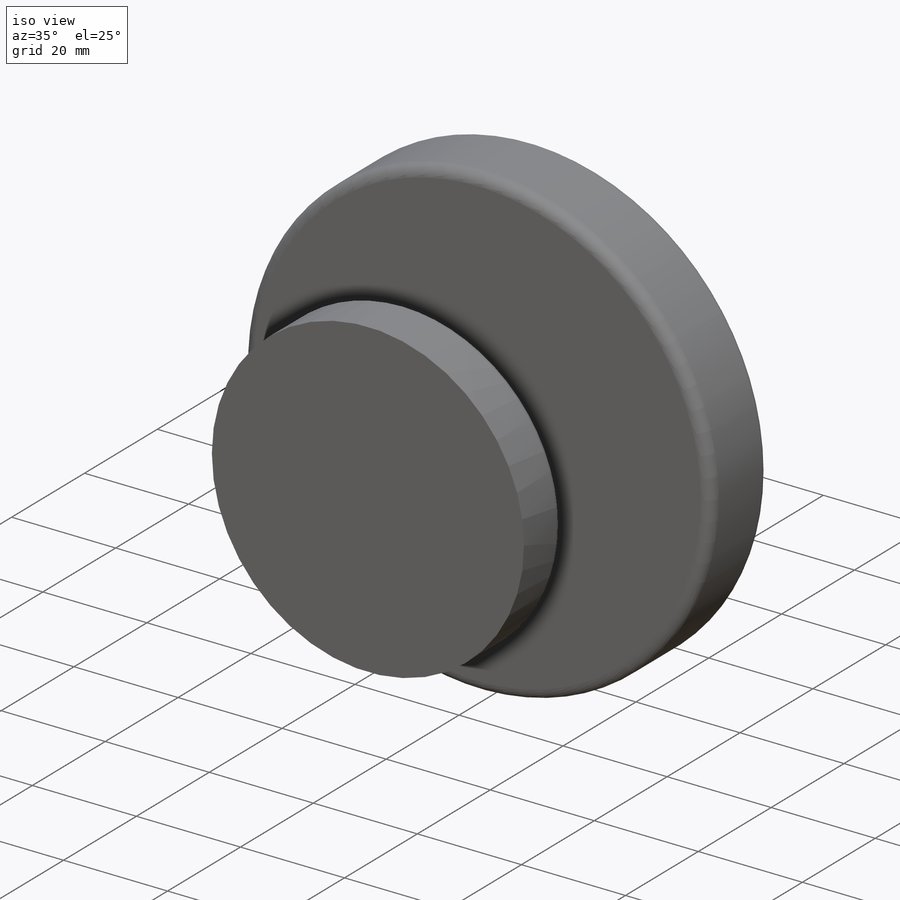
[diagram: iso view]
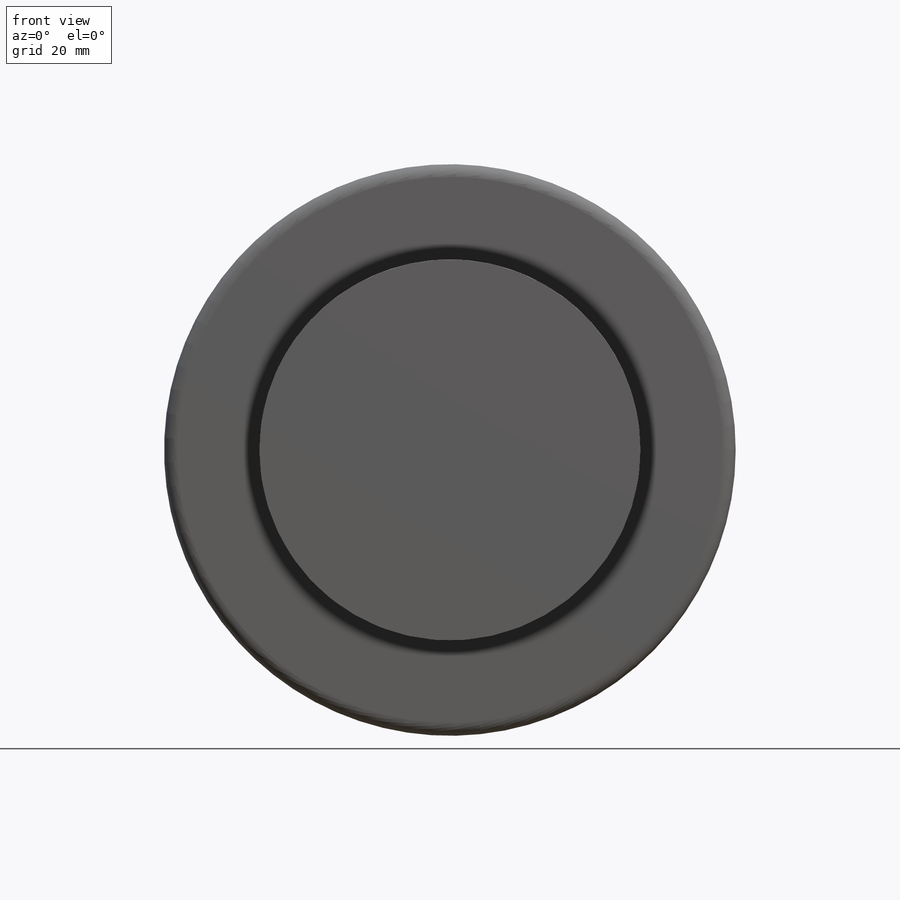
[diagram: front view]
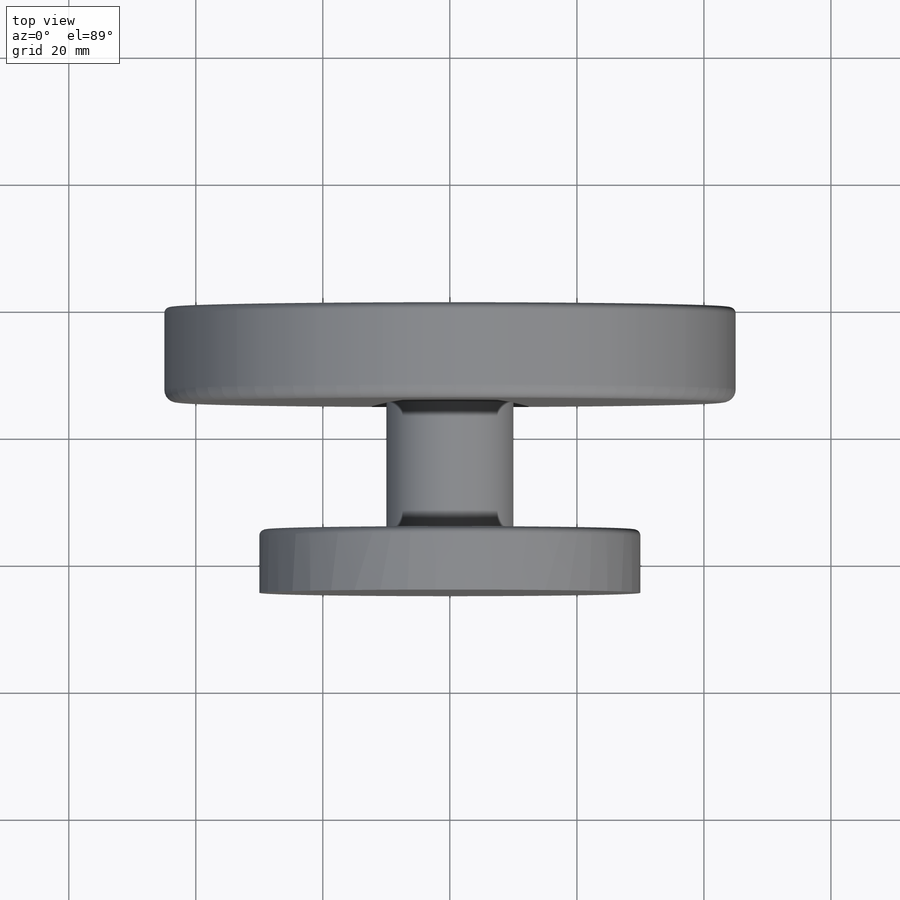
[diagram: top view]
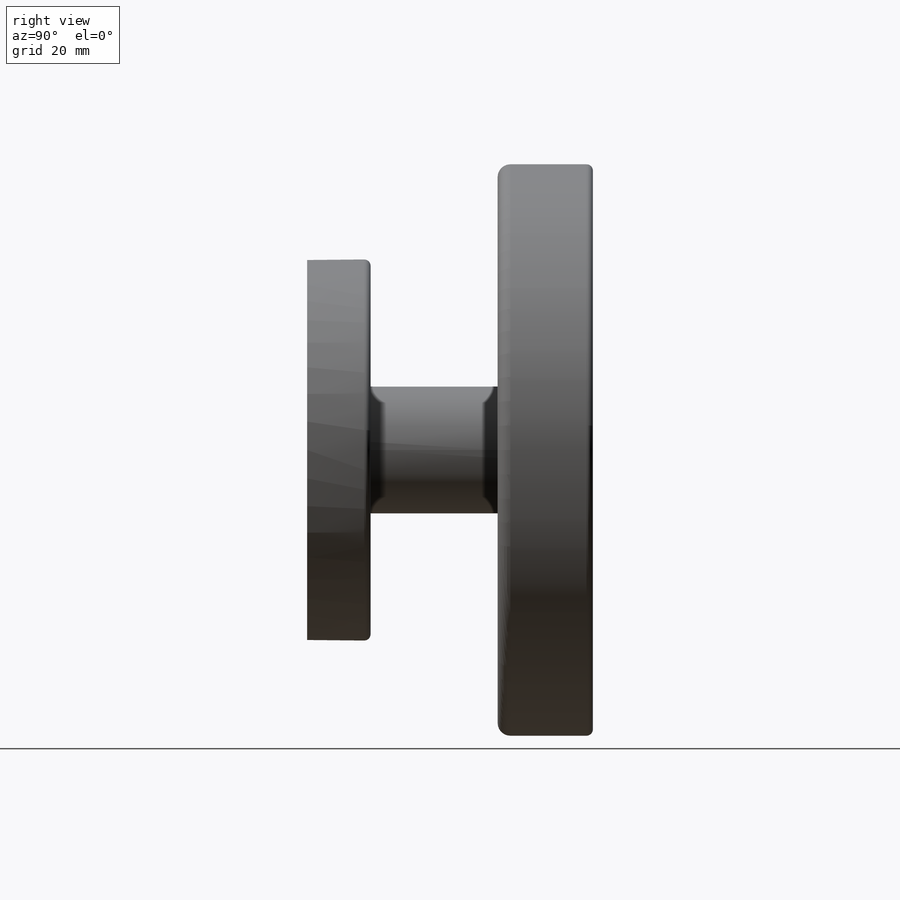
[diagram: right view]
SOLIDWORKS PART (.sldprt)
format: sldprt  version: not decoded by parser v0  size: 220,672 bytes
history: native  units: mm
features: sketch x4, plane x3, extrude x3, fillet x3, material x1 (+9 scaffold rows collapsed)
feature tree (23):
  scaffold x9  (default folders/planes/origin — collapsed)
  material  "Matériau <non spécifié>"
  plane  "Plan de face"
  plane  "Plan de dessus"
  plane  "Plan de droite"
  sketch  "Esquisse1"  dims[D1=90.0mm]
  extrude  "Boss.-Extru.1"  Depth=15mm
  sketch  "Esquisse3"  dims[D1=20.0mm D2=10.0mm]
  extrude  "Boss.-Extru.2"  Depth=20mm
  sketch  "Esquisse4"  dims[D1=60.0mm]
  extrude  "Boss.-Extru.3"  Depth=10mm
  fillet  "Congé1"  Radius=2mm
  sketch  "Esquisse5"  dims[D3=4.3mm D6=4.5mm D7=4.5mm D1=2.0mm D2=11.6mm D4=43.8mm D5=23.2mm D8=12.0mm]
  fillet  "Congé2"  Radius=1mm
  fillet  "Congé3"  Radius=1mm
decode coverage: 10 of 10 modeling features carry decoded parameters
note: suppression state not decoded; provenance and decode notes live in map.json
